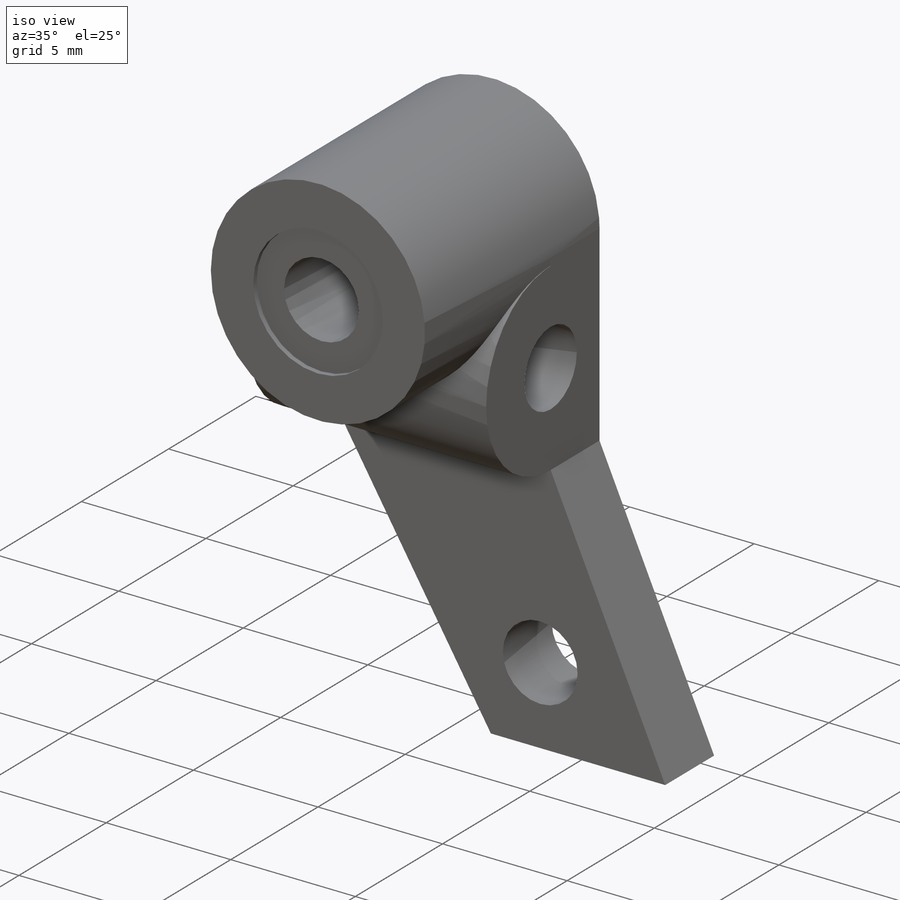
[diagram: iso view]
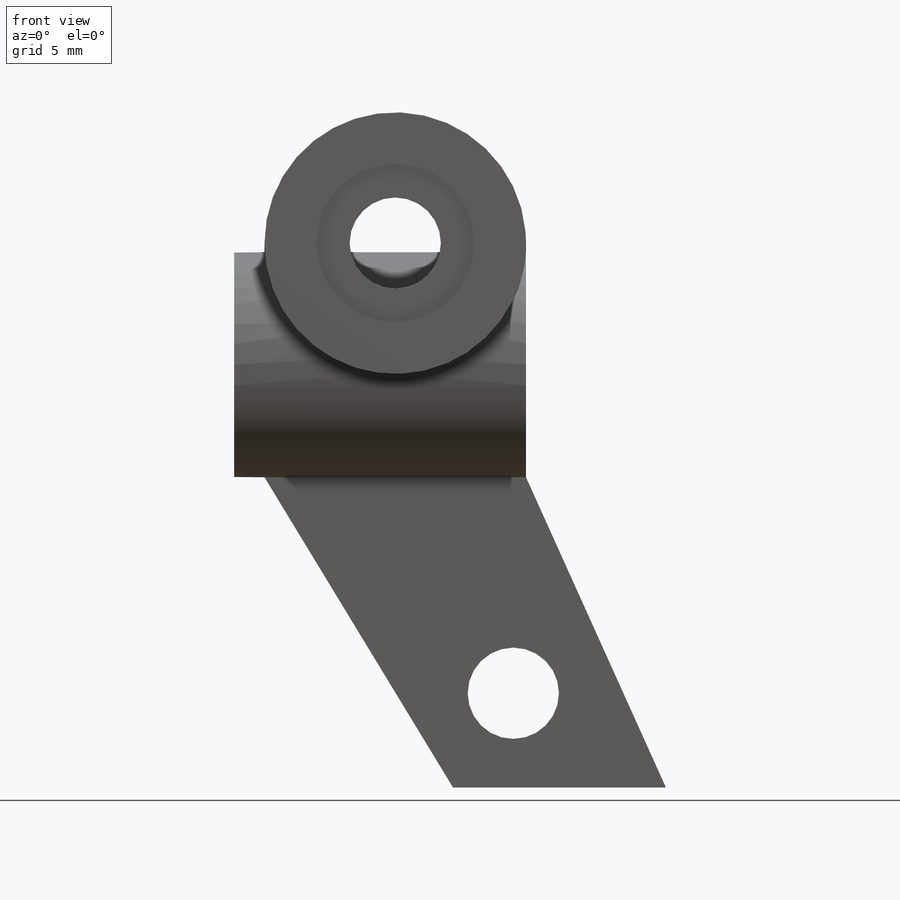
[diagram: front view]
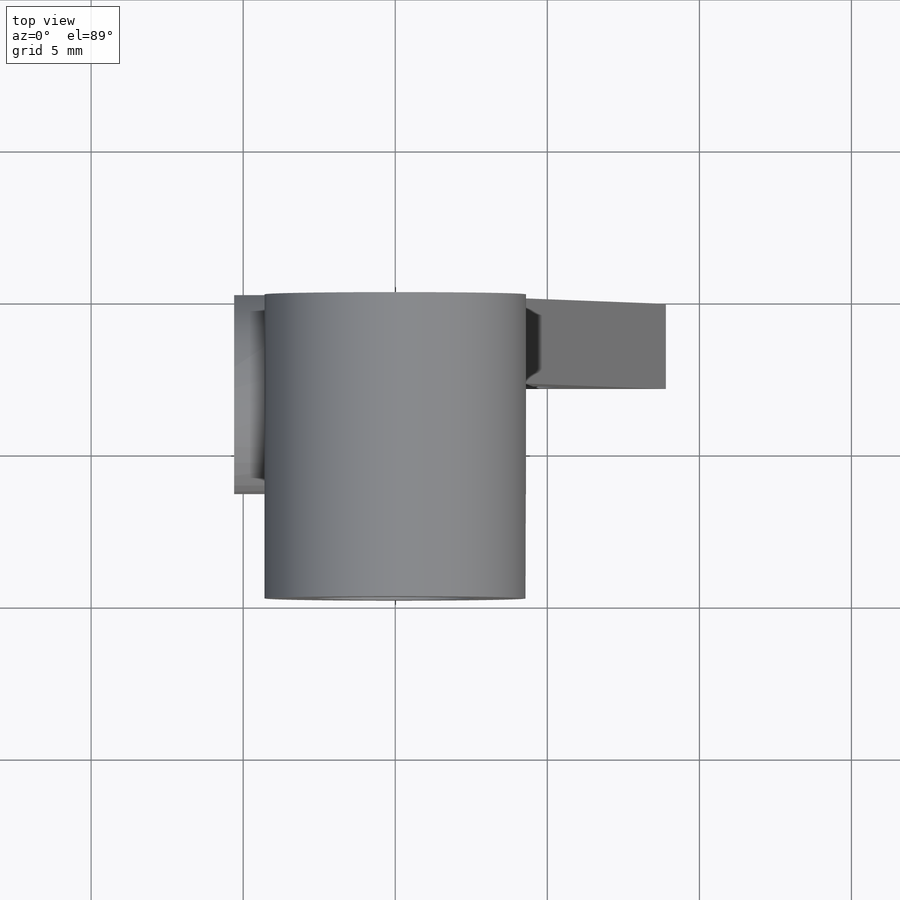
[diagram: top view]
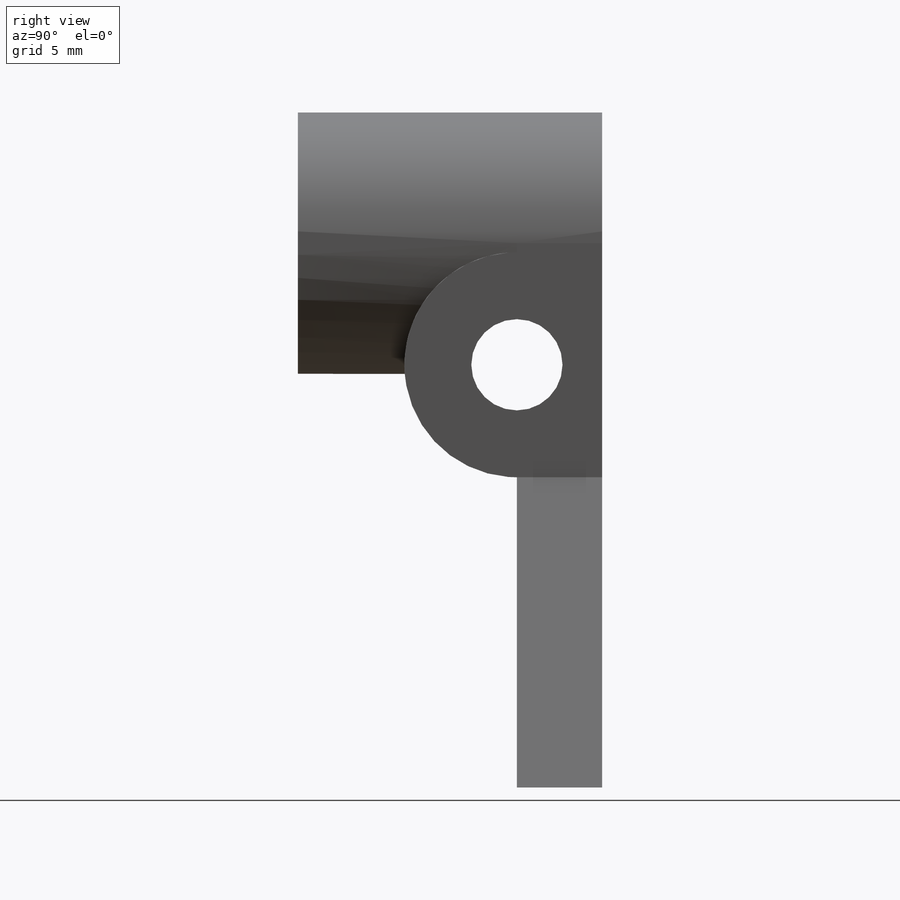
[diagram: right view]
SOLIDWORKS PART (.sldprt)
format: sldprt  version: not decoded by parser v0  size: 365,056 bytes
history: native  units: mm
features: sketch x14, extrude x6, plane x4, cut_extrude x3, material x1, revolve x1, cut_revolve x1, helix x1, sweep x1 (+10 scaffold rows collapsed)
feature tree (42):
  scaffold x10  (default folders/planes/origin — collapsed)
  material  "材质 <未指定>"
  plane  "前视基准面"
  plane  "上视基准面"
  plane  "右视基准面"
  sketch  "草图1"  dims[c1.D1=8.6mm c1.D6=3.0mm c1.D9=3.0mm c1.D2=7.7mm c1.D3=11.6mm c1.D4=7.4mm c1.D5=~10.933238mm c2.D4=11.6mm c2.D5=~8.429146mm c2.D3=10.2mm c3.D5=7.0mm c3.D6=~3.924491mm c3.D4=4.6mm c4.D5=7.0mm c4.D7=3.1mm c4.D8=~3.689953mm c5.D8=~114.274441deg c6.D8=3.3mm]
  extrude  "凸台-拉伸1"  Depth=2.8mm
  sketch  "草图2"  dims[D1=7.4mm]
  extrude  "凸台-拉伸2"  Depth=9.6mm
  sketch  "草图3"
  extrude  "凸台-拉伸4"  Depth=10mm
  sketch  "草图4"  dims[D1=5.2mm]
  cut_extrude  "切除-拉伸1"  Depth=0.2mm
  sketch  "草图5"  dims[D1=4.0mm]
  cut_extrude  "切除-拉伸2"  Depth=7mm
  sketch  "草图6"  dims[D1=3.0mm]
  cut_extrude  "切除-拉伸3"  [1 undecoded]
  sketch  "草图7"  dims[D1=5.0mm]
  extrude  "凸台-拉伸5"  Depth=2mm
  sketch  "草图8"  dims[D1=2.5mm]
  extrude  "凸台-拉伸6"  Depth=1.2mm
  sketch  "草图9"
  plane  "基准面1"
  sketch  "草图10"  dims[c1.D1=4.2mm c1.D2=~1.338938mm c2.D2=90.0deg c3.D2=1.2mm c3.D3=3.4mm]
  revolve  "旋转1"  Angle=360deg
  sketch  "草图13"  dims[D1=1.5mm]
  cut_revolve  "切除-旋转1"  Angle=360deg
  sketch  "草图14"  dims[D1=0.0mm]
  extrude  "凸台-拉伸7"  Depth=6mm
  sketch  "草图15"
  helix  "螺旋线/涡状线1"  Pitch=5mm
  sketch  "草图16"  dims[D1=~0.146094mm D2=~0.596879mm D3=~0.375723mm D4=~2.765082mm]
  sweep  "切除-扫描1"
decode coverage: 22 of 27 modeling features carry decoded parameters
note: ~ marks probable driven/reference dimensions
note: 1 parameter value undecoded
note: suppression state not decoded; provenance and decode notes live in map.json
